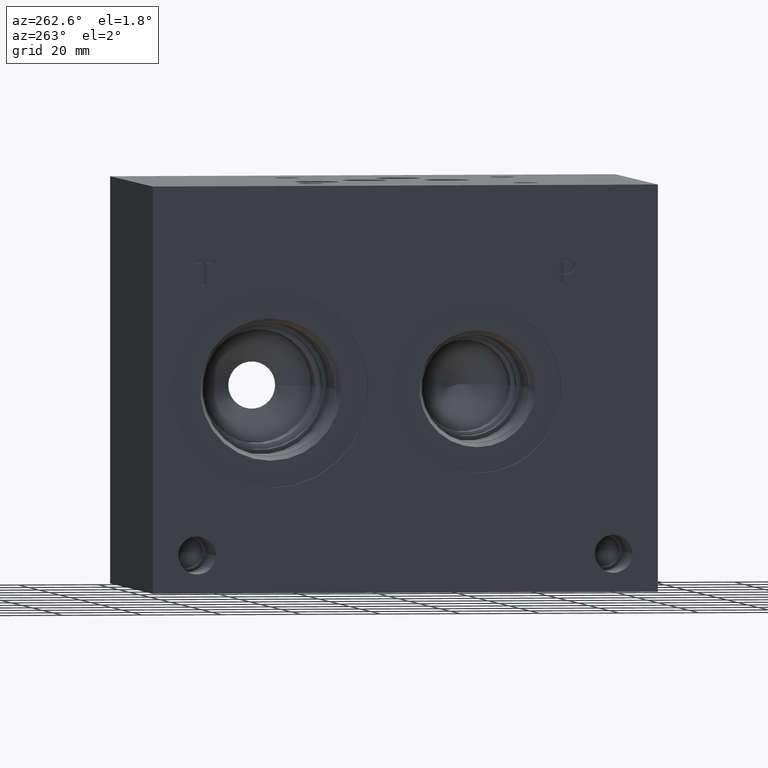
[diagram: clean part render]
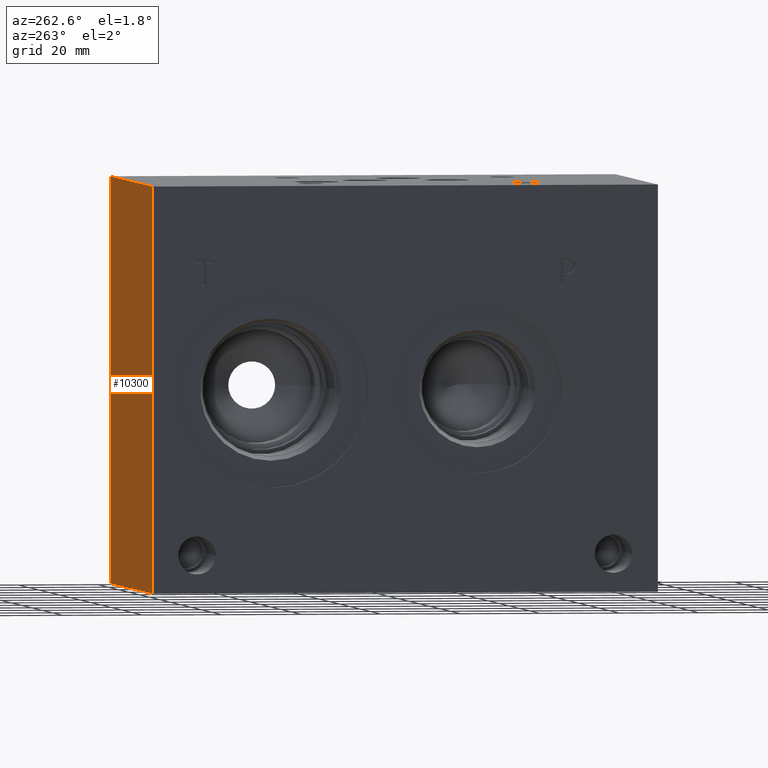
[diagram: same view with one face highlighted and labeled with its STEP entity id]
A machine part, auxiliary view. The second image highlights one B-rep face of the part: STEP entity #10300.
In plain terms, the highlighted planar face has unit normal (0, 1, 0).
Its self-contained STEP definition (entity closure, byte-faithful):
#1274=FACE_OUTER_BOUND('',#1869,.T.);
#1869=EDGE_LOOP('',(#9021,#9022,#9023,#9024));
#1939=LINE('',#13331,#2914);
#2001=LINE('',#13609,#2976);
#2855=LINE('',#17638,#3830);
#2856=LINE('',#17639,#3831);
#2914=VECTOR('',#11009,10.);
#2976=VECTOR('',#11125,10.);
#3830=VECTOR('',#13065,10.);
#3831=VECTOR('',#13066,10.);
#3881=VERTEX_POINT('',#13328);
#3882=VERTEX_POINT('',#13330);
#3940=VERTEX_POINT('',#13602);
#3943=VERTEX_POINT('',#13607);
#4873=EDGE_CURVE('',#3881,#3882,#1939,.T.);
#4959=EDGE_CURVE('',#3940,#3943,#2001,.T.);
#6219=EDGE_CURVE('',#3881,#3940,#2855,.T.);
#6220=EDGE_CURVE('',#3882,#3943,#2856,.T.);
#9021=ORIENTED_EDGE('',*,*,#6219,.T.);
#9022=ORIENTED_EDGE('',*,*,#4959,.T.);
#9023=ORIENTED_EDGE('',*,*,#6220,.F.);
#9024=ORIENTED_EDGE('',*,*,#4873,.F.);
#9370=PLANE('',#10907);
#10300=ADVANCED_FACE('',(#1274),#9370,.T.);
#10907=AXIS2_PLACEMENT_3D('',#17637,#13063,#13064);
#11009=DIRECTION('',(0.,0.,1.));
#11125=DIRECTION('',(0.,0.,1.));
#13063=DIRECTION('center_axis',(0.,1.,0.));
#13064=DIRECTION('ref_axis',(-1.,0.,0.));
#13065=DIRECTION('',(-1.,0.,0.));
#13066=DIRECTION('',(-1.,0.,0.));
#13328=CARTESIAN_POINT('',(82.55,127.,0.));
#13330=CARTESIAN_POINT('',(82.55,127.,101.6));
#13331=CARTESIAN_POINT('',(82.55,127.,0.));
#13602=CARTESIAN_POINT('',(0.,127.,0.));
#13607=CARTESIAN_POINT('',(0.,127.,101.6));
#13609=CARTESIAN_POINT('',(0.,127.,0.));
#17637=CARTESIAN_POINT('Origin',(82.55,127.,0.));
#17638=CARTESIAN_POINT('',(82.55,127.,0.));
#17639=CARTESIAN_POINT('',(82.55,127.,101.6));